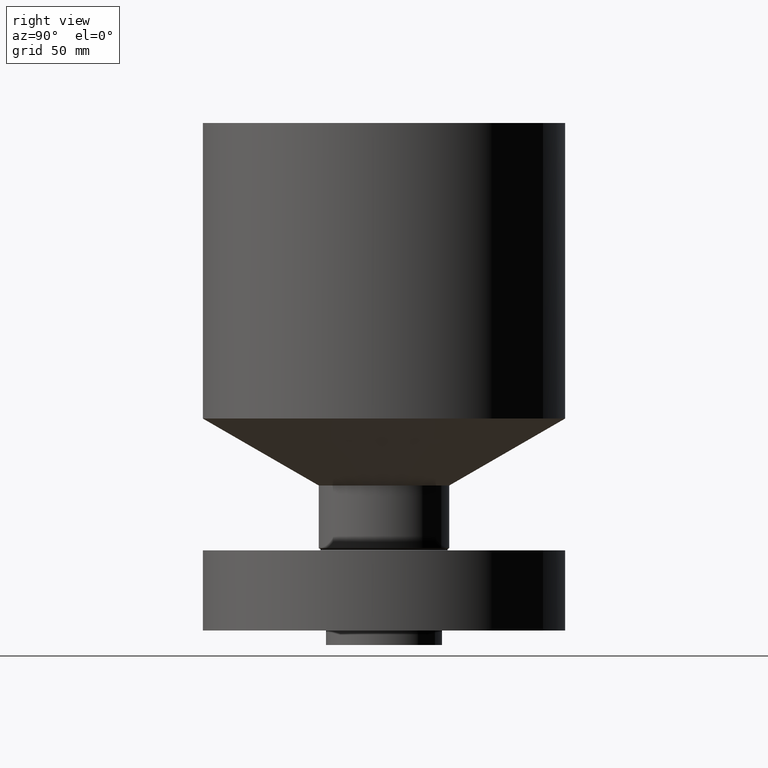
[diagram: clean part render]
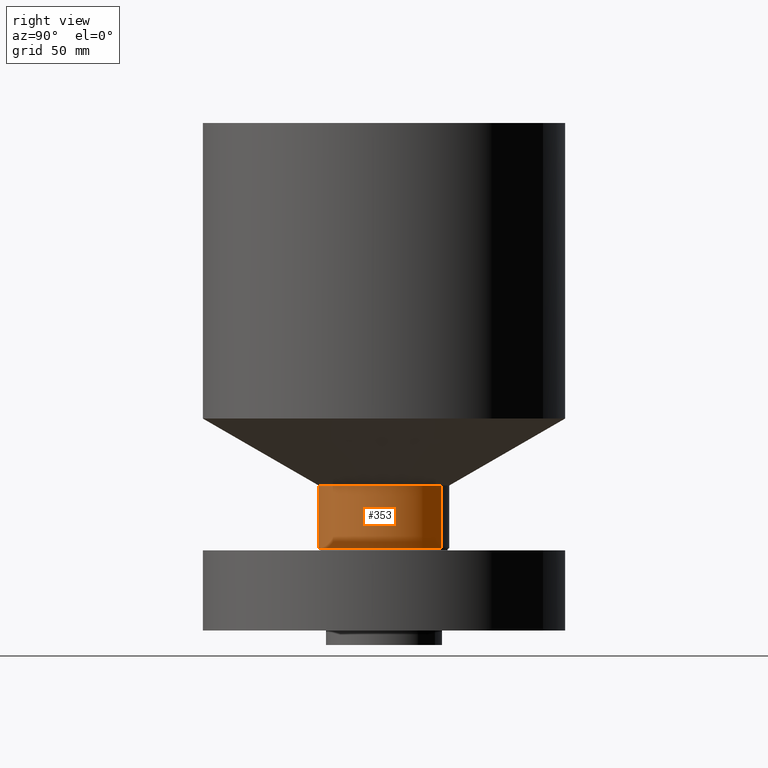
[diagram: same view with one face highlighted and labeled with its STEP entity id]
A machine part, right view. The second image highlights one B-rep face of the part: STEP entity #353.
In plain terms, the highlighted cylindrical surface (partial cylindrical patch) has radius 28.575 mm, axis along (0, 0, -1).
Its self-contained STEP definition (entity closure, byte-faithful):
#294=AXIS2_PLACEMENT_3D('Circle Axis2P3D',#292,#293,$) ;
#326=AXIS2_PLACEMENT_3D('Cylinder Axis2P3D',#323,#324,#325) ;
#337=AXIS2_PLACEMENT_3D('Circle Axis2P3D',#335,#336,$) ;
#289=CARTESIAN_POINT('Vertex',(0.539353730932,0.987280382131,1.42098076212)) ;
#292=CARTESIAN_POINT('Axis2P3D Location',(0.,0.,1.42098076212)) ;
#296=CARTESIAN_POINT('Vertex',(-0.539353730932,-0.987280382131,1.42098076212)) ;
#323=CARTESIAN_POINT('Axis2P3D Location',(0.,0.,4.25000000002)) ;
#328=CARTESIAN_POINT('Line Origine',(0.539353730932,0.987280382131,1.96049038106)) ;
#332=CARTESIAN_POINT('Vertex',(0.539353730932,0.987280382131,2.50000000001)) ;
#335=CARTESIAN_POINT('Axis2P3D Location',(0.,0.,2.50000000001)) ;
#339=CARTESIAN_POINT('Vertex',(-0.539353730932,-0.987280382131,2.50000000001)) ;
#342=CARTESIAN_POINT('Line Origine',(-0.539353730932,-0.987280382131,1.96049038106)) ;
#293=DIRECTION('Axis2P3D Direction',(-0.,0.,0.0393700787402)) ;
#324=DIRECTION('Axis2P3D Direction',(0.,0.,-0.0393700787402)) ;
#325=DIRECTION('Axis2P3D XDirection',(-0.0188750212049,-0.0345504945626,0.)) ;
#329=DIRECTION('Vector Direction',(0.,0.,-0.0393700787402)) ;
#336=DIRECTION('Axis2P3D Direction',(0.,0.,-0.0393700787402)) ;
#343=DIRECTION('Vector Direction',(0.,0.,-0.0393700787402)) ;
#330=VECTOR('Line Direction',#329,0.0393700787402) ;
#344=VECTOR('Line Direction',#343,0.0393700787402) ;
#348=ORIENTED_EDGE('',*,*,#298,.F.) ;
#349=ORIENTED_EDGE('',*,*,#334,.T.) ;
#350=ORIENTED_EDGE('',*,*,#341,.T.) ;
#351=ORIENTED_EDGE('',*,*,#346,.F.) ;
#353=ADVANCED_FACE('PartBody',(#352),#327,.T.) ;
#295=CIRCLE('generated circle',#294,1.125) ;
#338=CIRCLE('generated circle',#337,1.125) ;
#327=CYLINDRICAL_SURFACE('generated cylinder',#326,1.125) ;
#298=EDGE_CURVE('',#290,#297,#295,.F.) ;
#334=EDGE_CURVE('',#290,#333,#331,.F.) ;
#341=EDGE_CURVE('',#333,#340,#338,.T.) ;
#346=EDGE_CURVE('',#297,#340,#345,.F.) ;
#347=EDGE_LOOP('',(#348,#349,#350,#351)) ;
#352=FACE_OUTER_BOUND('',#347,.T.) ;
#331=LINE('Line',#328,#330) ;
#345=LINE('Line',#342,#344) ;
#290=VERTEX_POINT('',#289) ;
#297=VERTEX_POINT('',#296) ;
#333=VERTEX_POINT('',#332) ;
#340=VERTEX_POINT('',#339) ;